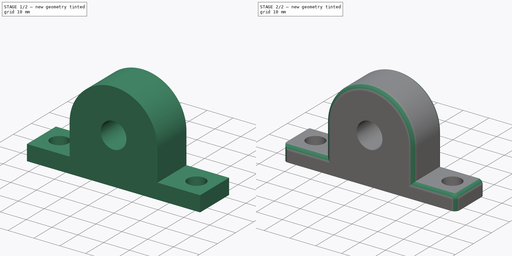
[diagram: build sequence overview — one tinted view per stage of 2, left to right]
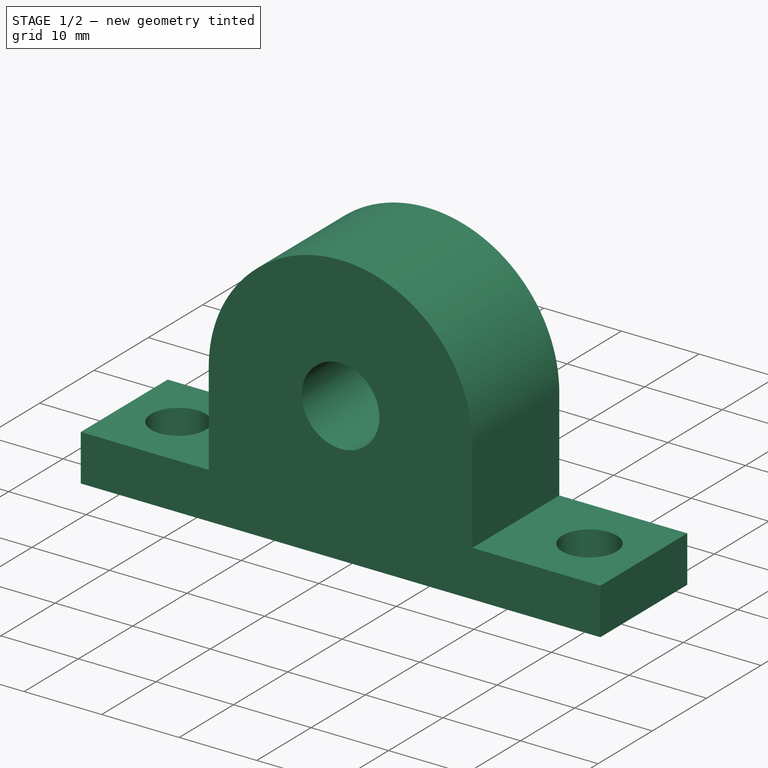
[diagram: stage 1 of 2 — iso view after this stage's code; geometry added in this stage tinted green]
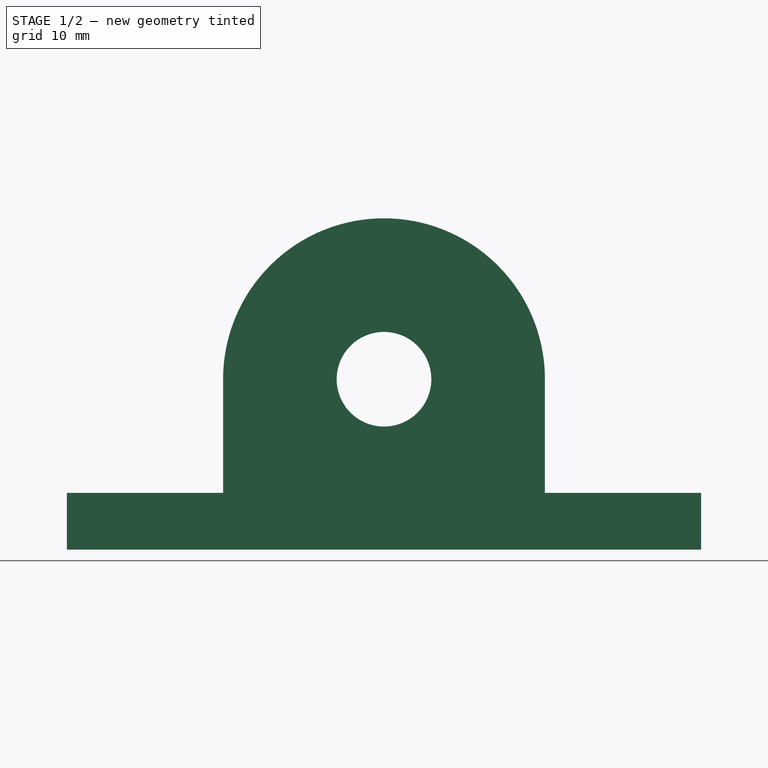
[diagram: stage 1 of 2 — front view after this stage's code; geometry added in this stage tinted green]
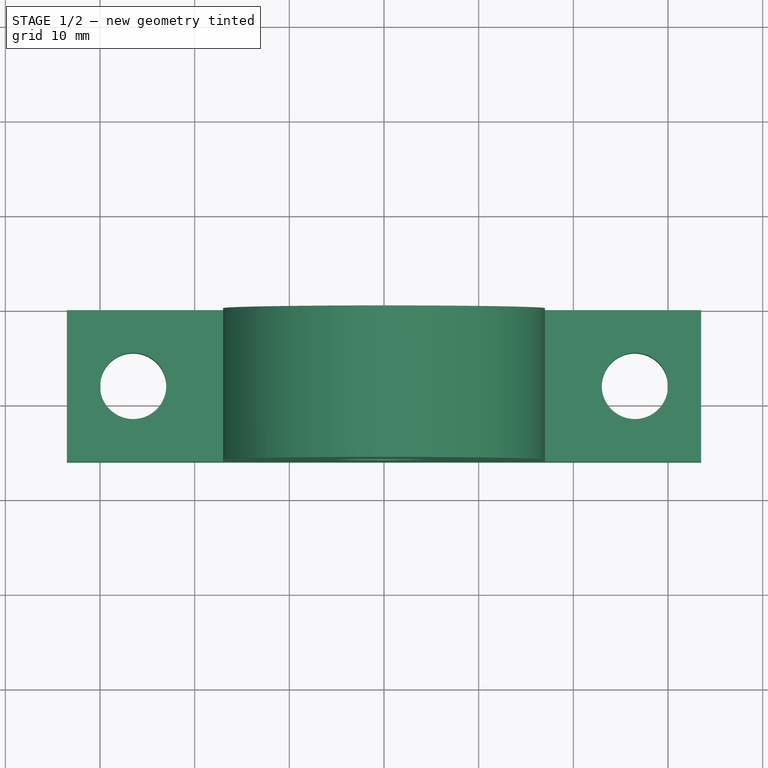
[diagram: stage 1 of 2 — top view after this stage's code; geometry added in this stage tinted green]
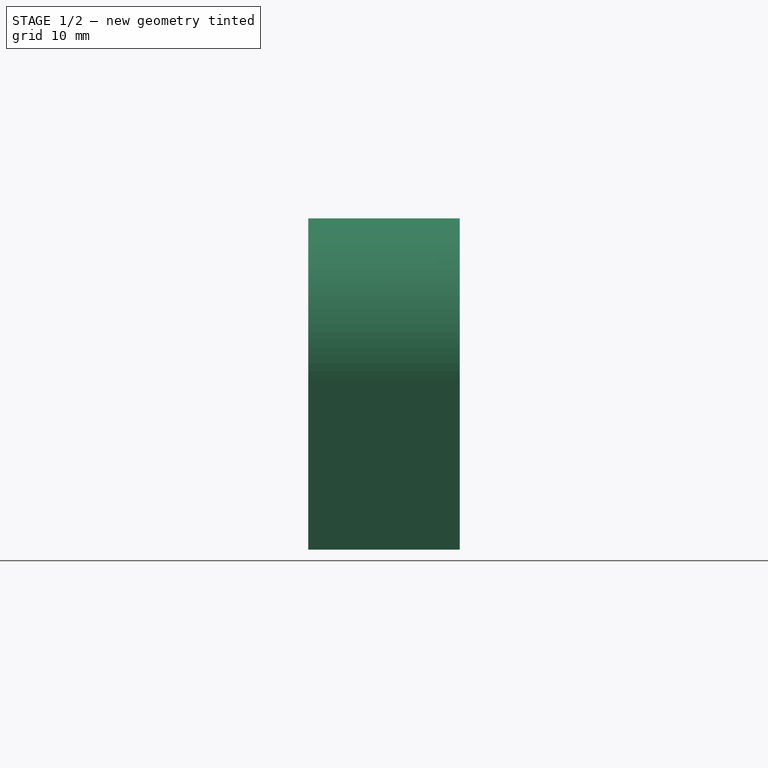
[diagram: stage 1 of 2 — right view after this stage's code; geometry added in this stage tinted green]
FCSTD DOCUMENT  (FreeCAD 0.21R33771 (Git))
Label: Flange Bearing
License: All rights reserved
LicenseURL: http://en.wikipedia.org/wiki/All_rights_reserved
objects: Sketcher::SketchObject×2, PartDesign::CoordinateSystem×2, PartDesign::Pad×1, PartDesign::Pocket×1, PartDesign::Fillet×1, PartDesign::Body×1
note: 11 computed .brp shape members not serialized (recipe doc carries the construction recipe); baked Part::Feature solids carry a one-line shape summary decoded from their .brp

FEATURE [Sketcher::SketchObject] Sketch012
  FullyConstrained = true
  MapMode = 5
  Placement = pos=(0,0,0) rot=(1,0,0;1.5708rad)
  Support = -> [XZ_Plane011]
  sketch-geometry (10):
    g0: LineSegment StartX=33.5 StartY=-18 StartZ=0 EndX=-33.5 EndY=-18 EndZ=0
    g1: LineSegment StartX=-33.5 StartY=-18 StartZ=0 EndX=-33.5 EndY=-12 EndZ=0
    g2: LineSegment StartX=-33.5 StartY=-12 StartZ=0 EndX=-17 EndY=-12 EndZ=0
    g3: LineSegment StartX=-17 StartY=-12 StartZ=0 EndX=-17 EndY=-5.3e-15 EndZ=0
    g4: LineSegment StartX=17 StartY=1.7e-15 StartZ=0 EndX=17 EndY=-12 EndZ=0
    g5: LineSegment StartX=17 StartY=-12 StartZ=0 EndX=33.5 EndY=-12 EndZ=0
    g6: LineSegment StartX=33.5 StartY=-12 StartZ=0 EndX=33.5 EndY=-18 EndZ=0
    g7: ArcOfCircle CenterX=0 CenterY=0 CenterZ=0 NormalX=0 NormalY=0 NormalZ=1 AngleXU=0 Radius=17 StartAngle=1e-16 EndAngle=3.14159
    g8: Circle CenterX=0 CenterY=0 CenterZ=0 NormalX=0 NormalY=0 NormalZ=1 AngleXU=0 Radius=5
    g9: GeomPoint X=0 Y=17 Z=0
  constraints (25):
    c: Coincident(g0,g1)
    c: Vertical(g1)
    c: Coincident(g1,g2)
    c: Coincident(g2,g3)
    c: Vertical(g3)
    c: Vertical(g4)
    c: Coincident(g4,g5)
    c: Coincident(g5,g6)
    c: Coincident(g0,g6)
    c: Vertical(g6)
    c: Horizontal(g5)
    c: Horizontal(g2)
    c: Horizontal(g2,g4)
    c: Coincident(g7,g-1)
    c: Tangent(g7,g3) = 1.5708
    c: Tangent(g7,g4) = 1.5708
    c: Coincident(g8,g7)
    c: Diameter(g8) = 10
    c: DistanceY(g6,g6) = 6
    c: Symmetric(g0,g0,g-2)
    c: DistanceY(g0,g7) = 18
    c: DistanceX(g0,g0) = 67
    c: PointOnObject(g9,g7)
    c: PointOnObject(g9,g-2)
    c: DistanceY(g0,g9) = 35
FEATURE [PartDesign::Pad] Pad004
  Direction = (0,-1,-2e-16)
  Length = 16
  Length2 = 10
  Profile = -> Sketch012
  ReferenceAxis = -> Sketch012 [N_Axis]
  Type = 0
FEATURE [Sketcher::SketchObject] Sketch013
  FullyConstrained = true
  MapMode = 5
  Placement = pos=(0,4e-15,-18) rot=(1,0,0;3.14159rad)
  Support = -> [Pad004]
  sketch-geometry (2):
    g0: Circle CenterX=-26.5 CenterY=8 CenterZ=0 NormalX=0 NormalY=0 NormalZ=1 AngleXU=0 Radius=3.5
    g1: Circle CenterX=26.5 CenterY=8 CenterZ=0 NormalX=0 NormalY=0 NormalZ=1 AngleXU=0 Radius=3.5
  constraints (5):
    c: Equal(g1,g0)
    c: Diameter(g1) = 7
    c: DistanceX(g0,g1) = 53
    c: Symmetric(g1,g0,g-2)
    c: DistanceY(g-1,g1) = 8
FEATURE [PartDesign::Pocket] Pocket
  BaseFeature = -> Pad004
  Direction = (1,1,1)
  Length = 5
  Length2 = 5
  Profile = -> Sketch013
  Type = 1
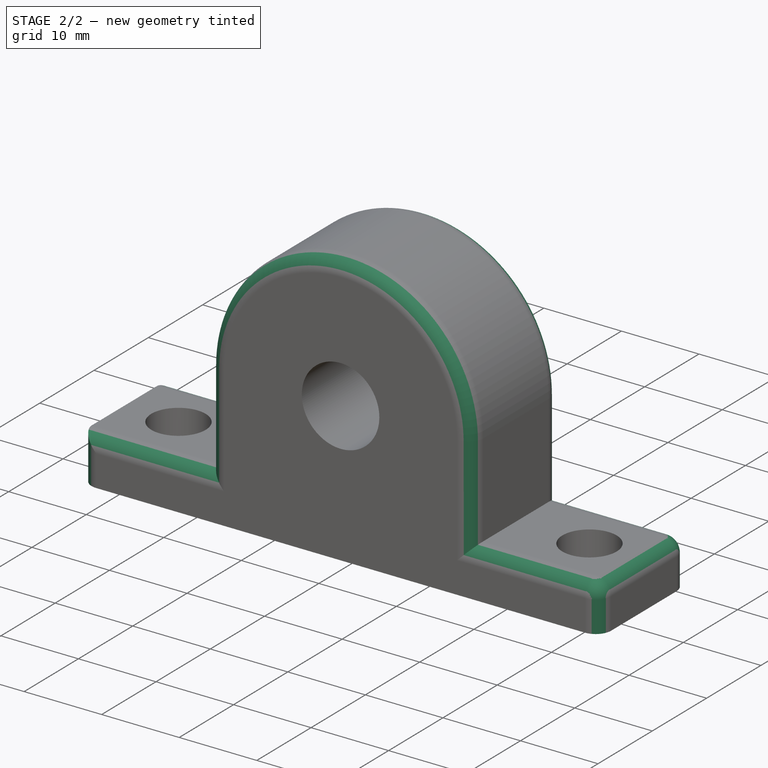
[diagram: stage 2 of 2 — iso view after this stage's code; geometry added in this stage tinted green]
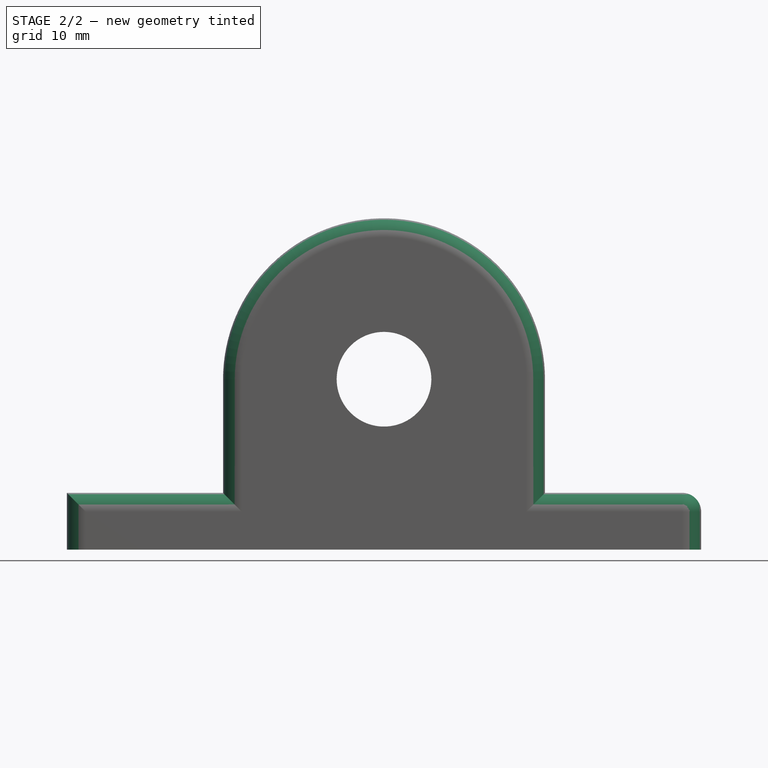
[diagram: stage 2 of 2 — front view after this stage's code; geometry added in this stage tinted green]
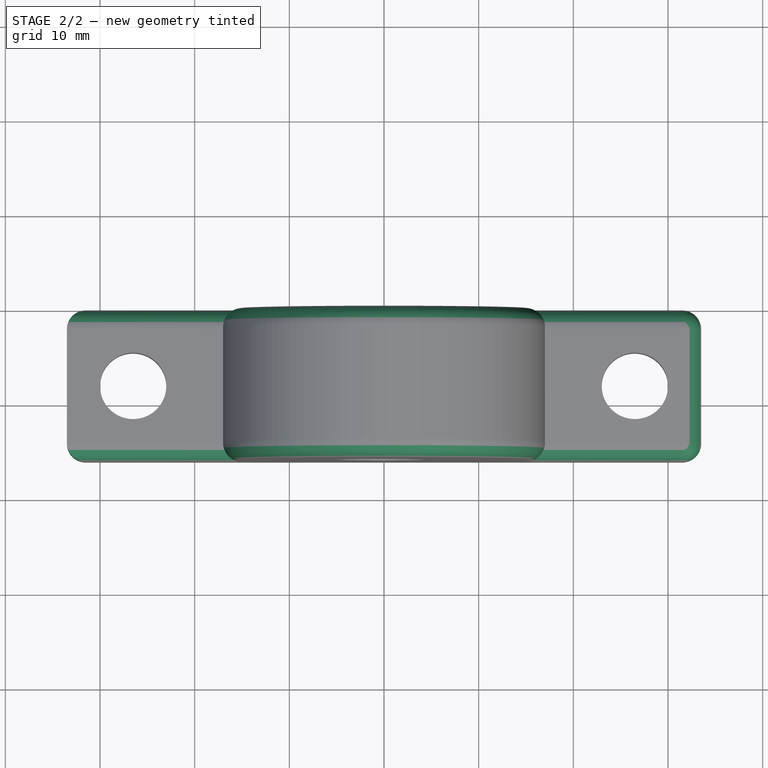
[diagram: stage 2 of 2 — top view after this stage's code; geometry added in this stage tinted green]
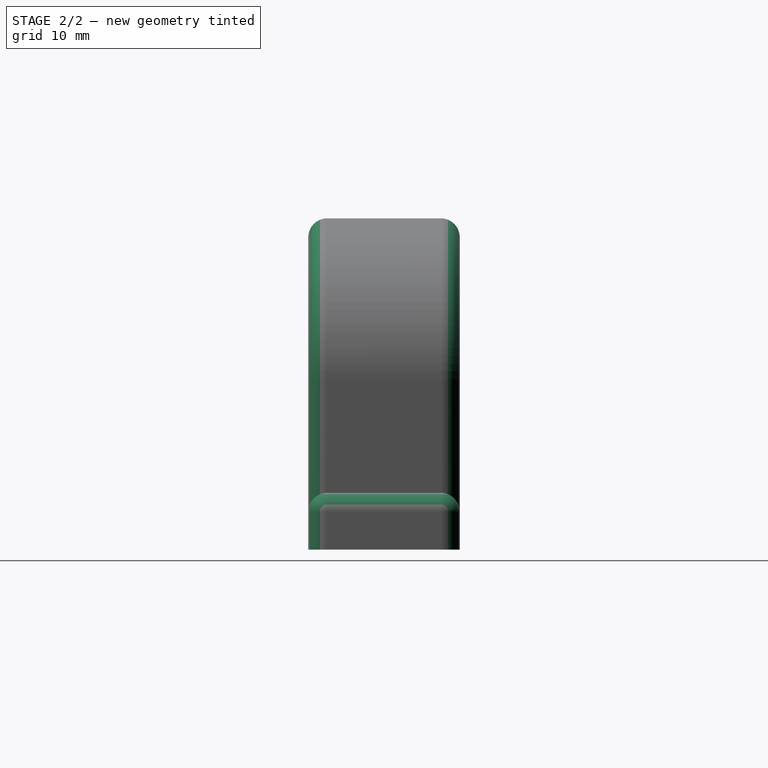
[diagram: stage 2 of 2 — right view after this stage's code; geometry added in this stage tinted green]
FEATURE [PartDesign::Fillet] Fillet
  Base = -> Pocket [Edge7,Edge6,Edge15,Edge21,Edge20,Edge14,Edge9,Edge8,Edge12,Edge18,Edge10]
  BaseFeature = -> Pocket
  Radius = 2
  SupportTransform = false
  UseAllEdges = false
FEATURE [PartDesign::CoordinateSystem] Local_CS
  AttacherType = Attacher::AttachEngine3D
  MapMode = 45
  Placement = pos=(1.55e-14,-8,-18) rot=(0,0,1;1.5708rad)
  Support = -> [Fillet]
FEATURE [PartDesign::CoordinateSystem] Local_CS001
  AttacherType = Attacher::AttachEngine3D
  MapMode = 45
  Placement = pos=(1.8e-15,-8,-1.9e-15) rot=(0,0.707107,0.707107;3.14159rad)
  Support = -> [Fillet]
FEATURE [PartDesign::Body] Body003  label="Flange Bearing"
  Group = -> [Sketch012,Pad004,Sketch013,Pocket,Fillet,Local_CS,Local_CS001]
  Origin = -> Origin011
  Placement = pos=(-6.05499,-96.2039,26.128) rot=(0,0,1;0.004976rad)
  Tip = -> Fillet
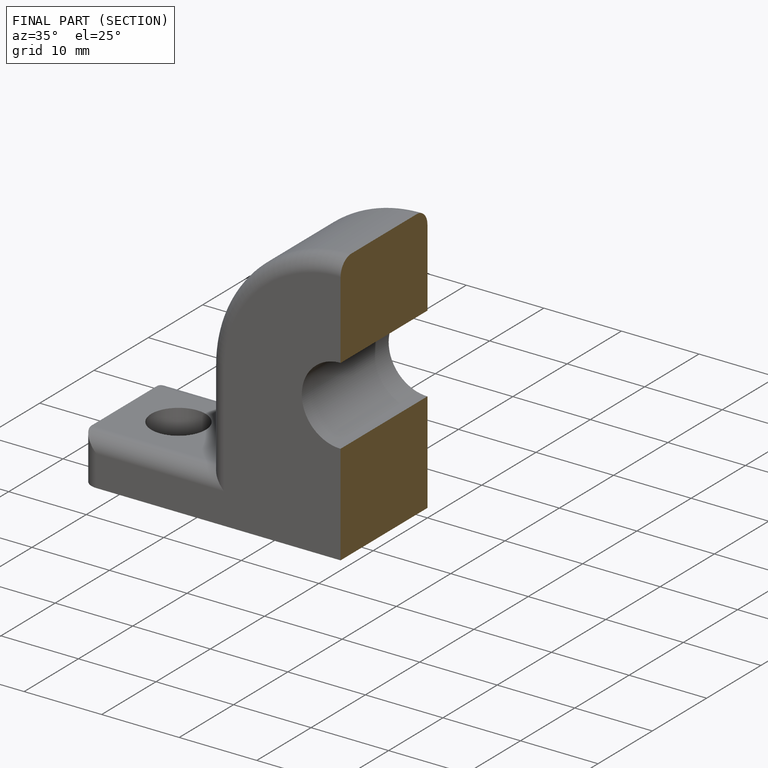
[diagram: finished part — half-section view (interior)]
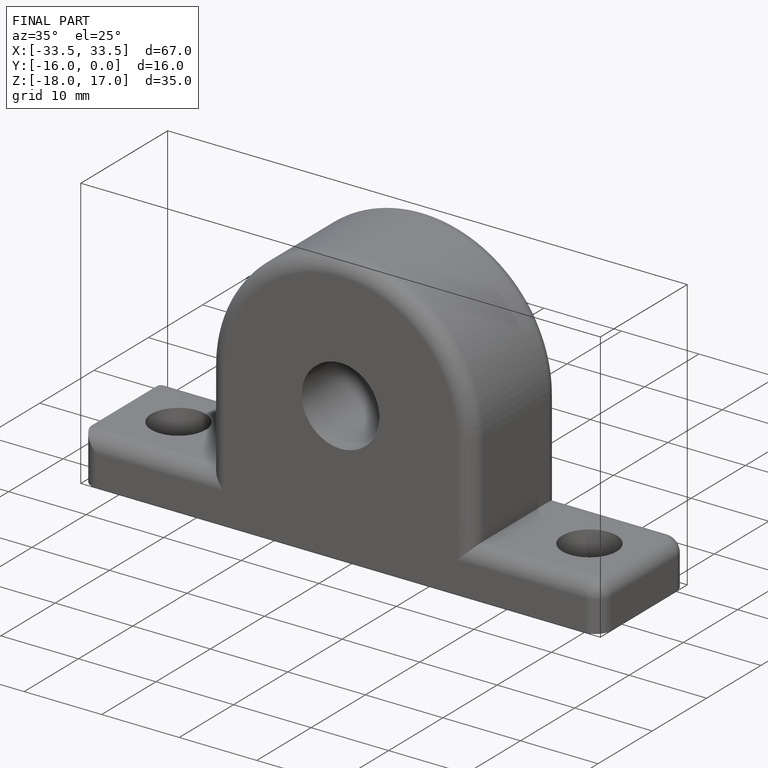
[diagram: finished part — iso view with bounding-box wireframe]
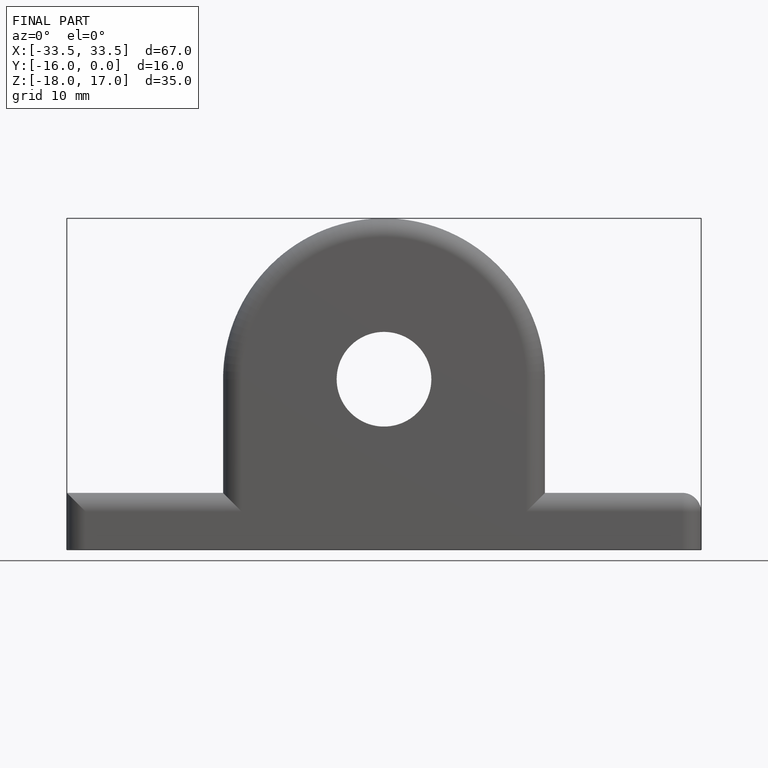
[diagram: finished part — front view with bounding-box wireframe]
